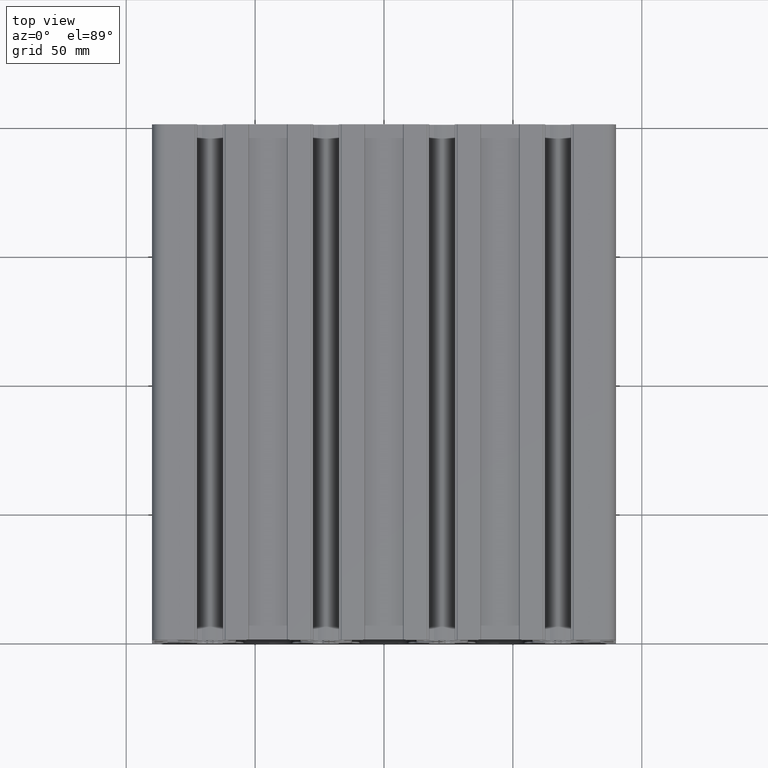
[diagram: clean part render]
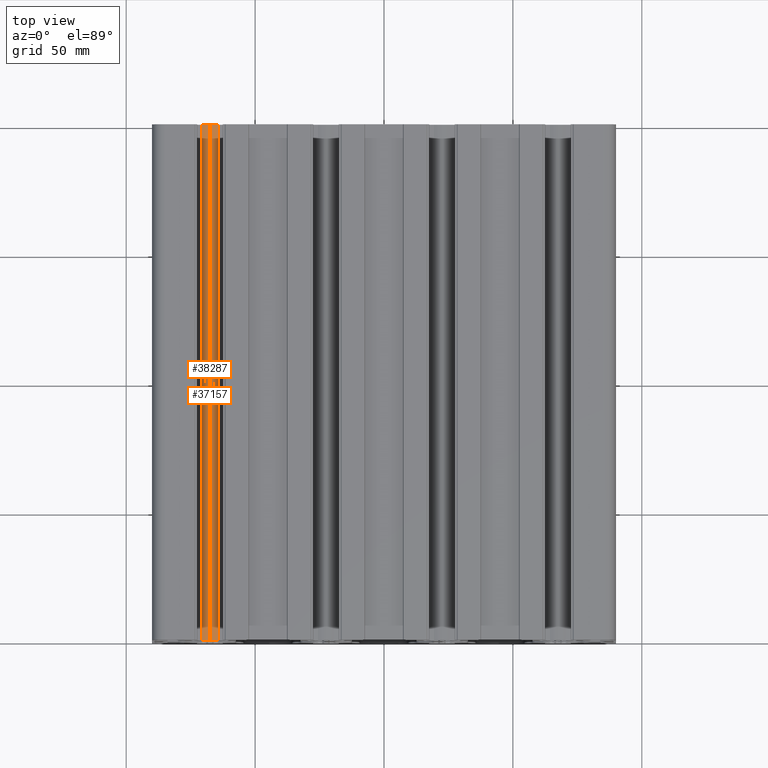
[diagram: same view with one multi-face feature highlighted, each face labeled with its STEP entity id]
A machine part, top view. The highlighted faces form ONE feature: a constant-radius fillet chain: 2 tangent blend faces with common blend radius 10 mm. The faces share edges in the B-rep.
Their STEP definitions:
[1] entity #37157 (Cylinder):
#243 = CIRCLE ( 'NONE', #24991, 10.00000000000000200 ) ;
#373 = VECTOR ( 'NONE', #3269, 1000.000000000000000 ) ;
#1805 = DIRECTION ( 'NONE',  ( 0.0000000000000000000, 1.000000000000000000, 0.0000000000000000000 ) ) ;
#2481 = VERTEX_POINT ( 'NONE', #23407 ) ;
#2773 = ORIENTED_EDGE ( 'NONE', *, *, #30523, .F. ) ;
#2837 = FACE_OUTER_BOUND ( 'NONE', #17977, .T. ) ;
#3269 = DIRECTION ( 'NONE',  ( 0.0000000000000000000, 1.000000000000000000, 0.0000000000000000000 ) ) ;
#4090 = LINE ( 'NONE', #29869, #34212 ) ;
#4870 = ORIENTED_EDGE ( 'NONE', *, *, #34312, .F. ) ;
#6251 = EDGE_CURVE ( 'NONE', #2481, #38100, #25787, .T. ) ;
#6306 = ORIENTED_EDGE ( 'NONE', *, *, #20270, .T. ) ;
#8026 = CIRCLE ( 'NONE', #35549, 10.00000000000000200 ) ;
#9659 = AXIS2_PLACEMENT_3D ( 'NONE', #34891, #25106, #14970 ) ;
#11282 = CARTESIAN_POINT ( 'NONE',  ( -67.50000000000000000, 0.0000000000000000000, 22.50000000000000000 ) ) ;
#14970 = DIRECTION ( 'NONE',  ( 0.0000000000000000000, 0.0000000000000000000, 1.000000000000000000 ) ) ;
#15828 = VERTEX_POINT ( 'NONE', #37514 ) ;
#17977 = EDGE_LOOP ( 'NONE', ( #25995, #6306, #4870, #2773 ) ) ;
#18913 = CYLINDRICAL_SURFACE ( 'NONE', #9659, 10.00000000000000200 ) ;
#18942 = CARTESIAN_POINT ( 'NONE',  ( -64.37750100080086200, 200.0000000000000000, 32.00000000000000000 ) ) ;
#20034 = VERTEX_POINT ( 'NONE', #18942 ) ;
#20270 = EDGE_CURVE ( 'NONE', #2481, #15828, #8026, .T. ) ;
#23407 = CARTESIAN_POINT ( 'NONE',  ( -67.50000000000000000, 0.0000000000000000000, 32.50000000000000000 ) ) ;
#24857 = CARTESIAN_POINT ( 'NONE',  ( -67.50000000000000000, 200.0000000000000000, 22.50000000000000000 ) ) ;
#24991 = AXIS2_PLACEMENT_3D ( 'NONE', #24857, #1805, #38437 ) ;
#25106 = DIRECTION ( 'NONE',  ( 0.0000000000000000000, 1.000000000000000000, 0.0000000000000000000 ) ) ;
#25787 = LINE ( 'NONE', #40050, #373 ) ;
#25995 = ORIENTED_EDGE ( 'NONE', *, *, #6251, .F. ) ;
#27506 = DIRECTION ( 'NONE',  ( 0.0000000000000000000, 1.000000000000000000, 0.0000000000000000000 ) ) ;
#29869 = CARTESIAN_POINT ( 'NONE',  ( -64.37750100080090500, 0.0000000000000000000, 32.00000000000000000 ) ) ;
#30523 = EDGE_CURVE ( 'NONE', #38100, #20034, #243, .T. ) ;
#33639 = DIRECTION ( 'NONE',  ( 0.0000000000000000000, -1.000000000000000000, -0.0000000000000000000 ) ) ;
#33943 = DIRECTION ( 'NONE',  ( 0.0000000000000000000, 0.0000000000000000000, 1.000000000000000000 ) ) ;
#34212 = VECTOR ( 'NONE', #33639, 1000.000000000000000 ) ;
#34312 = EDGE_CURVE ( 'NONE', #20034, #15828, #4090, .T. ) ;
#34891 = CARTESIAN_POINT ( 'NONE',  ( -67.50000000000000000, 0.0000000000000000000, 22.50000000000000000 ) ) ;
#35003 = CARTESIAN_POINT ( 'NONE',  ( -67.50000000000000000, 200.0000000000000000, 32.50000000000000000 ) ) ;
#35549 = AXIS2_PLACEMENT_3D ( 'NONE', #11282, #27506, #33943 ) ;
#37157 = ADVANCED_FACE ( 'NONE', ( #2837 ), #18913, .T. ) ;
#37514 = CARTESIAN_POINT ( 'NONE',  ( -64.37750100080086200, 0.0000000000000000000, 32.00000000000000000 ) ) ;
#38100 = VERTEX_POINT ( 'NONE', #35003 ) ;
#38437 = DIRECTION ( 'NONE',  ( 0.0000000000000000000, 0.0000000000000000000, 1.000000000000000000 ) ) ;
#40050 = CARTESIAN_POINT ( 'NONE',  ( -67.50000000000000000, 0.0000000000000000000, 32.50000000000000000 ) ) ;
[2] entity #38287 (Cylinder):
#373 = VECTOR ( 'NONE', #3269, 1000.000000000000000 ) ;
#690 = ORIENTED_EDGE ( 'NONE', *, *, #41484, .T. ) ;
#2481 = VERTEX_POINT ( 'NONE', #23407 ) ;
#3170 = DIRECTION ( 'NONE',  ( 0.0000000000000000000, 0.0000000000000000000, 1.000000000000000000 ) ) ;
#3269 = DIRECTION ( 'NONE',  ( 0.0000000000000000000, 1.000000000000000000, 0.0000000000000000000 ) ) ;
#3320 = CARTESIAN_POINT ( 'NONE',  ( -67.50000000000000000, 0.0000000000000000000, 22.50000000000000000 ) ) ;
#6251 = EDGE_CURVE ( 'NONE', #2481, #38100, #25787, .T. ) ;
#6503 = AXIS2_PLACEMENT_3D ( 'NONE', #18571, #34907, #21493 ) ;
#6743 = ORIENTED_EDGE ( 'NONE', *, *, #6251, .T. ) ;
#8572 = ORIENTED_EDGE ( 'NONE', *, *, #20777, .T. ) ;
#10586 = EDGE_CURVE ( 'NONE', #21011, #38100, #22173, .T. ) ;
#13582 = DIRECTION ( 'NONE',  ( 0.0000000000000000000, 0.0000000000000000000, 1.000000000000000000 ) ) ;
#14088 = DIRECTION ( 'NONE',  ( -0.0000000000000000000, -1.000000000000000000, -0.0000000000000000000 ) ) ;
#15998 = ORIENTED_EDGE ( 'NONE', *, *, #10586, .F. ) ;
#18571 = CARTESIAN_POINT ( 'NONE',  ( -67.50000000000000000, 0.0000000000000000000, 22.50000000000000000 ) ) ;
#19248 = CARTESIAN_POINT ( 'NONE',  ( -70.62249899919906700, 200.0000000000000000, 32.00000000000004300 ) ) ;
#19820 = CYLINDRICAL_SURFACE ( 'NONE', #32249, 10.00000000000000200 ) ;
#20777 = EDGE_CURVE ( 'NONE', #21011, #28576, #24010, .T. ) ;
#20864 = CARTESIAN_POINT ( 'NONE',  ( -70.62249899919892500, 0.0000000000000000000, 32.00000000000009200 ) ) ;
#21011 = VERTEX_POINT ( 'NONE', #19248 ) ;
#21493 = DIRECTION ( 'NONE',  ( 0.0000000000000000000, 0.0000000000000000000, 1.000000000000000000 ) ) ;
#22173 = CIRCLE ( 'NONE', #25179, 10.00000000000000200 ) ;
#22407 = CIRCLE ( 'NONE', #6503, 10.00000000000000200 ) ;
#23407 = CARTESIAN_POINT ( 'NONE',  ( -67.50000000000000000, 0.0000000000000000000, 32.50000000000000000 ) ) ;
#24010 = LINE ( 'NONE', #20864, #34976 ) ;
#25179 = AXIS2_PLACEMENT_3D ( 'NONE', #30135, #33483, #13582 ) ;
#25787 = LINE ( 'NONE', #40050, #373 ) ;
#26508 = DIRECTION ( 'NONE',  ( 0.0000000000000000000, 1.000000000000000000, 0.0000000000000000000 ) ) ;
#27332 = CARTESIAN_POINT ( 'NONE',  ( -70.62249899919906700, 0.0000000000000000000, 32.00000000000004300 ) ) ;
#28576 = VERTEX_POINT ( 'NONE', #27332 ) ;
#29737 = FACE_OUTER_BOUND ( 'NONE', #37977, .T. ) ;
#30135 = CARTESIAN_POINT ( 'NONE',  ( -67.50000000000000000, 200.0000000000000000, 22.50000000000000000 ) ) ;
#32249 = AXIS2_PLACEMENT_3D ( 'NONE', #3320, #26508, #3170 ) ;
#33483 = DIRECTION ( 'NONE',  ( 0.0000000000000000000, 1.000000000000000000, 0.0000000000000000000 ) ) ;
#34907 = DIRECTION ( 'NONE',  ( 0.0000000000000000000, 1.000000000000000000, 0.0000000000000000000 ) ) ;
#34976 = VECTOR ( 'NONE', #14088, 1000.000000000000000 ) ;
#35003 = CARTESIAN_POINT ( 'NONE',  ( -67.50000000000000000, 200.0000000000000000, 32.50000000000000000 ) ) ;
#37977 = EDGE_LOOP ( 'NONE', ( #690, #6743, #15998, #8572 ) ) ;
#38100 = VERTEX_POINT ( 'NONE', #35003 ) ;
#38287 = ADVANCED_FACE ( 'NONE', ( #29737 ), #19820, .T. ) ;
#40050 = CARTESIAN_POINT ( 'NONE',  ( -67.50000000000000000, 0.0000000000000000000, 32.50000000000000000 ) ) ;
#41484 = EDGE_CURVE ( 'NONE', #28576, #2481, #22407, .T. ) ;